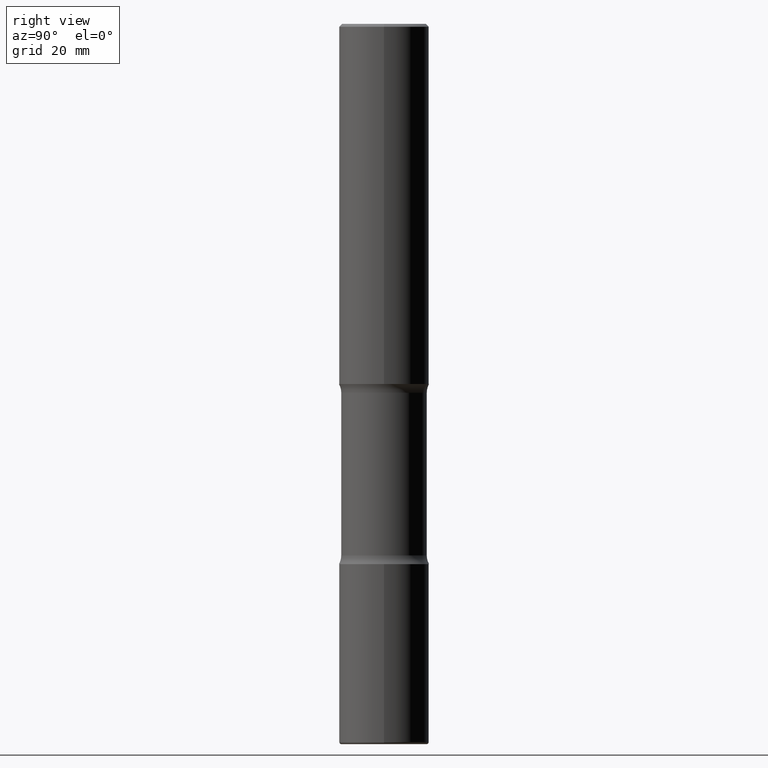
[diagram: clean part render]
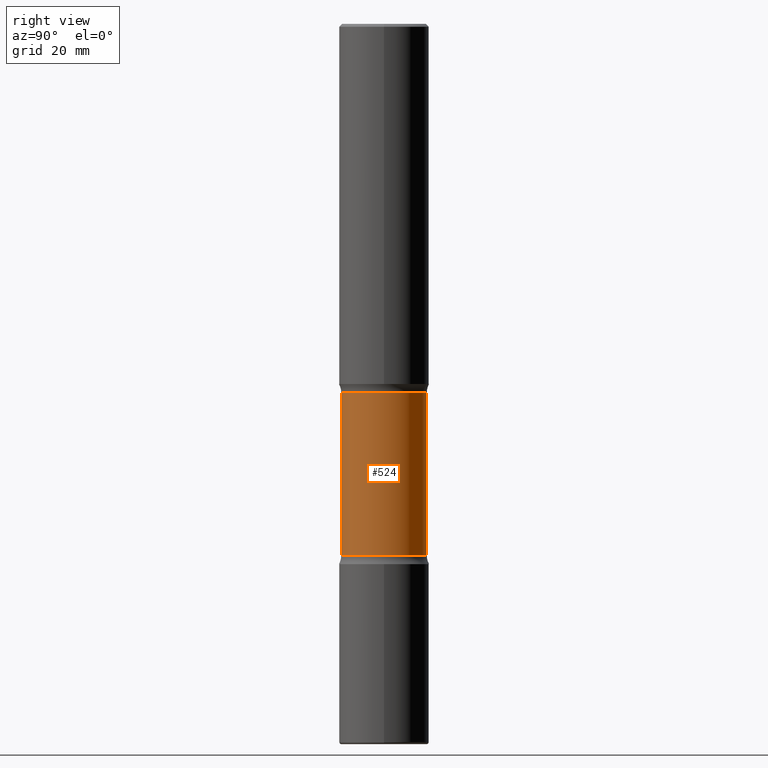
[diagram: same view with one face highlighted and labeled with its STEP entity id]
A machine part, right view. The second image highlights one B-rep face of the part: STEP entity #524.
In plain terms, the highlighted cylindrical surface (partial cylindrical patch) has radius 7.5406 mm, axis along (0, -0, -1).
Its self-contained STEP definition (entity closure, byte-faithful):
#8 = CIRCLE ( 'NONE', #205, 0.2968750000000000000 ) ;
#26 = VERTEX_POINT ( 'NONE', #105 ) ;
#43 = VECTOR ( 'NONE', #225, 39.37007874015748143 ) ;
#64 = DIRECTION ( 'NONE',  ( 2.521457479434076939E-29, -3.382661233743975076E-15, -1.000000000000000000 ) ) ;
#68 = CARTESIAN_POINT ( 'NONE',  ( 6.171273093058203090E-29, -9.069431456984199816E-15, -2.560515364784490711 ) ) ;
#70 = AXIS2_PLACEMENT_3D ( 'NONE', #486, #385, #552 ) ;
#86 = EDGE_CURVE ( 'NONE', #509, #26, #354, .T. ) ;
#105 = CARTESIAN_POINT ( 'NONE',  ( -2.090307983695922804E-15, -0.2968750000000128786, -3.689484635215507069 ) ) ;
#119 = EDGE_LOOP ( 'NONE', ( #467, #253, #436, #469 ) ) ;
#166 = CYLINDRICAL_SURFACE ( 'NONE', #70, 0.2968750000000000000 ) ;
#176 = EDGE_CURVE ( 'NONE', #539, #509, #190, .T. ) ;
#190 = CIRCLE ( 'NONE', #265, 0.2968750000000000000 ) ;
#205 = AXIS2_PLACEMENT_3D ( 'NONE', #464, #64, #496 ) ;
#222 = CARTESIAN_POINT ( 'NONE',  ( 2.073067044938233492E-15, 0.2968749999999827360, -5.000000000000000888 ) ) ;
#225 = DIRECTION ( 'NONE',  ( 2.521457479434076939E-29, -3.382661233743974681E-15, -1.000000000000000000 ) ) ;
#253 = ORIENTED_EDGE ( 'NONE', *, *, #86, .T. ) ;
#258 = DIRECTION ( 'NONE',  ( 6.982962677686266711E-15, 1.000000000000000000, -3.680805717779217644E-15 ) ) ;
#265 = AXIS2_PLACEMENT_3D ( 'NONE', #68, #550, #258 ) ;
#275 = CARTESIAN_POINT ( 'NONE',  ( 2.073067044938200360E-15, 0.2968749999999871214, -3.689484635215509289 ) ) ;
#297 = CARTESIAN_POINT ( 'NONE',  ( -2.036710343088299976E-15, -0.2968750000000173195, -4.999999999999999112 ) ) ;
#301 = VERTEX_POINT ( 'NONE', #275 ) ;
#354 = LINE ( 'NONE', #297, #43 ) ;
#382 = EDGE_CURVE ( 'NONE', #301, #26, #8, .T. ) ;
#385 = DIRECTION ( 'NONE',  ( 2.521457479434076939E-29, -3.382661233743975076E-15, -1.000000000000000000 ) ) ;
#433 = EDGE_CURVE ( 'NONE', #539, #301, #434, .T. ) ;
#434 = LINE ( 'NONE', #222, #458 ) ;
#436 = ORIENTED_EDGE ( 'NONE', *, *, #382, .F. ) ;
#458 = VECTOR ( 'NONE', #480, 39.37007874015748143 ) ;
#464 = CARTESIAN_POINT ( 'NONE',  ( 9.017921104037724021E-29, -1.288835204215942242E-14, -3.689484635215508401 ) ) ;
#467 = ORIENTED_EDGE ( 'NONE', *, *, #176, .T. ) ;
#469 = ORIENTED_EDGE ( 'NONE', *, *, #433, .F. ) ;
#475 = CARTESIAN_POINT ( 'NONE',  ( -2.090307983695953569E-15, -0.2968750000000091038, -2.560515364784489822 ) ) ;
#478 = CARTESIAN_POINT ( 'NONE',  ( 2.073067044938171961E-15, 0.2968749999999909517, -2.560515364784492043 ) ) ;
#480 = DIRECTION ( 'NONE',  ( 2.521457479434076939E-29, -3.382661233743974681E-15, -1.000000000000000000 ) ) ;
#486 = CARTESIAN_POINT ( 'NONE',  ( 1.232232987248685960E-28, -1.732138156284176685E-14, -5.000000000000000000 ) ) ;
#496 = DIRECTION ( 'NONE',  ( 6.982962677686265133E-15, 1.000000000000000000, -3.680805717779217644E-15 ) ) ;
#509 = VERTEX_POINT ( 'NONE', #475 ) ;
#524 = ADVANCED_FACE ( 'NONE', ( #555 ), #166, .T. ) ;
#539 = VERTEX_POINT ( 'NONE', #478 ) ;
#550 = DIRECTION ( 'NONE',  ( 2.521457479434076939E-29, -3.382661233743975076E-15, -1.000000000000000000 ) ) ;
#552 = DIRECTION ( 'NONE',  ( 6.982962677686266711E-15, 1.000000000000000000, -3.680805717779217644E-15 ) ) ;
#555 = FACE_OUTER_BOUND ( 'NONE', #119, .T. ) ;